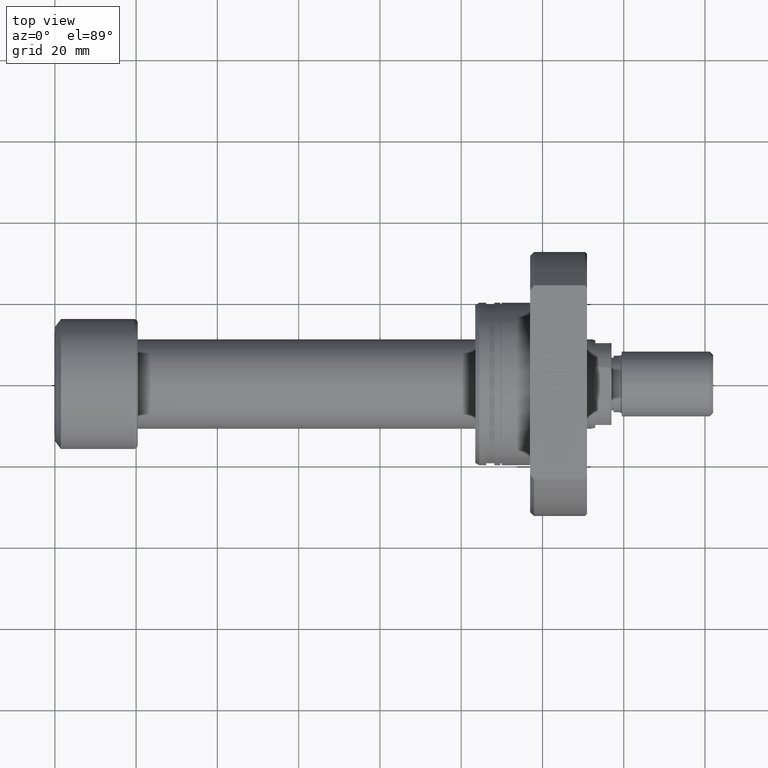
[diagram: clean part render]
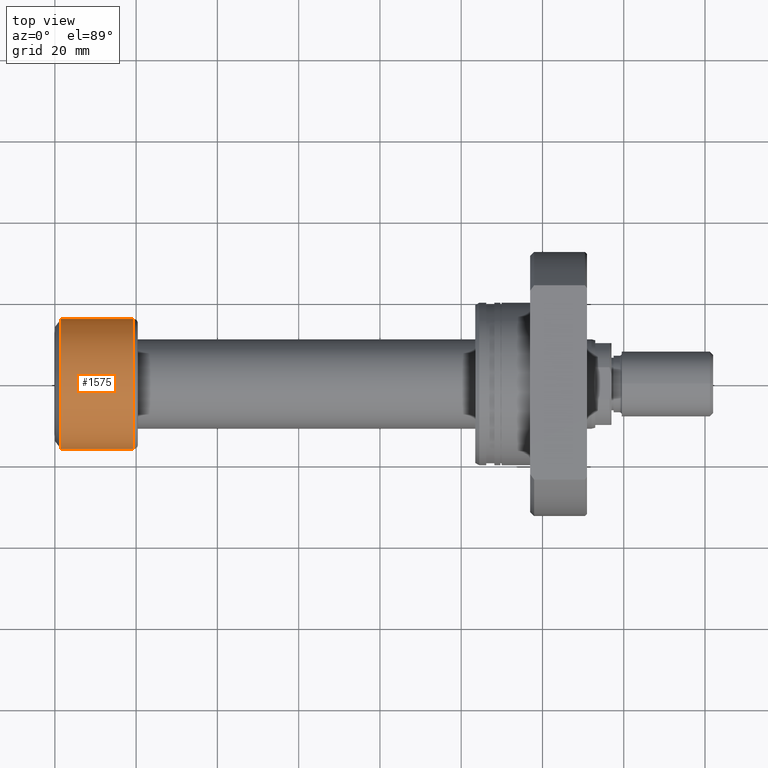
[diagram: same view with one face highlighted and labeled with its STEP entity id]
A machine part, top view. The second image highlights one B-rep face of the part: STEP entity #1575.
In plain terms, the highlighted cylindrical surface (partial cylindrical patch) has radius 16 mm, axis along (-1, -0, -0).
Its self-contained STEP definition (entity closure, byte-faithful):
#234 = VERTEX_POINT ( 'NONE', #1024 ) ;
#269 = CARTESIAN_POINT ( 'NONE',  ( 1.711267715310505281E-16, -16.00000000000000000, 0.000000000000000000 ) ) ;
#282 = VECTOR ( 'NONE', #3677, 1000.000000000000000 ) ;
#307 = CARTESIAN_POINT ( 'NONE',  ( 19.39999999999999503, -16.00000000000000000, 0.000000000000000000 ) ) ;
#312 = CARTESIAN_POINT ( 'NONE',  ( 0.000000000000000000, 0.000000000000000000, 0.000000000000000000 ) ) ;
#394 = EDGE_LOOP ( 'NONE', ( #2688, #2370, #2895, #440 ) ) ;
#440 = ORIENTED_EDGE ( 'NONE', *, *, #1360, .F. ) ;
#565 = VERTEX_POINT ( 'NONE', #2511 ) ;
#584 = CYLINDRICAL_SURFACE ( 'NONE', #759, 16.00000000000000000 ) ;
#759 = AXIS2_PLACEMENT_3D ( 'NONE', #312, #2810, #2865 ) ;
#849 = LINE ( 'NONE', #269, #282 ) ;
#946 = VECTOR ( 'NONE', #2454, 1000.000000000000000 ) ;
#1024 = CARTESIAN_POINT ( 'NONE',  ( 1.500000000000001776, 16.00000000000000000, 0.000000000000000000 ) ) ;
#1045 = CARTESIAN_POINT ( 'NONE',  ( 1.500000000000002220, -16.00000000000000000, 1.959434878635765526E-15 ) ) ;
#1282 = DIRECTION ( 'NONE',  ( -1.000000000000000000, -1.069542322069065801E-17, -0.000000000000000000 ) ) ;
#1336 = VERTEX_POINT ( 'NONE', #1045 ) ;
#1339 = CARTESIAN_POINT ( 'NONE',  ( -1.711267715310505281E-16, 16.00000000000000000, 1.959434878635765131E-15 ) ) ;
#1360 = EDGE_CURVE ( 'NONE', #2121, #1336, #849, .T. ) ;
#1540 = AXIS2_PLACEMENT_3D ( 'NONE', #1562, #1282, #2421 ) ;
#1562 = CARTESIAN_POINT ( 'NONE',  ( 1.500000000000001998, 1.604313483103600935E-17, 0.000000000000000000 ) ) ;
#1575 = ADVANCED_FACE ( 'NONE', ( #3177 ), #584, .T. ) ;
#1602 = AXIS2_PLACEMENT_3D ( 'NONE', #2343, #1736, #2874 ) ;
#1736 = DIRECTION ( 'NONE',  ( -1.000000000000000000, -1.069542322069065801E-17, -0.000000000000000000 ) ) ;
#1820 = EDGE_CURVE ( 'NONE', #1336, #234, #3146, .T. ) ;
#1835 = CIRCLE ( 'NONE', #1602, 16.00000000000000000 ) ;
#2121 = VERTEX_POINT ( 'NONE', #307 ) ;
#2343 = CARTESIAN_POINT ( 'NONE',  ( 19.39999999999999503, 2.074912104813986935E-16, 0.000000000000000000 ) ) ;
#2370 = ORIENTED_EDGE ( 'NONE', *, *, #2401, .T. ) ;
#2401 = EDGE_CURVE ( 'NONE', #565, #234, #2740, .T. ) ;
#2421 = DIRECTION ( 'NONE',  ( 1.355252715606880543E-17, -1.000000000000000000, 0.000000000000000000 ) ) ;
#2454 = DIRECTION ( 'NONE',  ( -1.000000000000000000, -1.069542322069065801E-17, -0.000000000000000000 ) ) ;
#2511 = CARTESIAN_POINT ( 'NONE',  ( 19.39999999999999503, 16.00000000000000000, 1.959434878635765131E-15 ) ) ;
#2688 = ORIENTED_EDGE ( 'NONE', *, *, #3531, .T. ) ;
#2740 = LINE ( 'NONE', #1339, #946 ) ;
#2810 = DIRECTION ( 'NONE',  ( -1.000000000000000000, -1.069542322069065801E-17, -0.000000000000000000 ) ) ;
#2865 = DIRECTION ( 'NONE',  ( 1.069542322069065801E-17, -1.000000000000000000, 0.000000000000000000 ) ) ;
#2874 = DIRECTION ( 'NONE',  ( 0.000000000000000000, -1.000000000000000000, 0.000000000000000000 ) ) ;
#2895 = ORIENTED_EDGE ( 'NONE', *, *, #1820, .F. ) ;
#3146 = CIRCLE ( 'NONE', #1540, 16.00000000000000000 ) ;
#3177 = FACE_OUTER_BOUND ( 'NONE', #394, .T. ) ;
#3531 = EDGE_CURVE ( 'NONE', #2121, #565, #1835, .T. ) ;
#3677 = DIRECTION ( 'NONE',  ( -1.000000000000000000, -1.069542322069065801E-17, -0.000000000000000000 ) ) ;